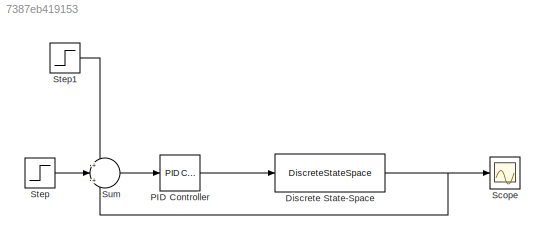
MODEL slx_7387eb419153
KIND model
CONFIG AbsTol = auto
CONFIG EnableMultiTasking = off
CONFIG FixedStep = auto
CONFIG MaxStep = auto
CONFIG MinStep = auto
CONFIG RelTol = 1e-3
CONFIG SampleTimeConstraint = Unconstrained
CONFIG SolverName = VariableStepAuto
CONFIG StartTime = 0.0
CONFIG StopTime = 10.0
BLOCK [DiscreteStateSpace] Discrete State-Space
  A = [0.966259805512643,0.020937278170769;0.211503070730898,0.098662247219045]
  B = [-0.004845864368065;0.021893138566807]
  C = [-56.541046013023710,4.833510649815440]
  D = 0
  SampleTime = 200e-6
BLOCK [Reference] PID Controller  REF=slpidlib/PID Controller
  LibrarySourceBlock = simulink/Continuous/PID Controller
  SourceBlock = slpidlib/PID Controller
  SourceType = PID 1dof
BLOCK [Scope] Scope
  Floating = off
  NumInputPorts = 1
  ScopeSpecificationString = Simulink.scopes.TimeScopeBlockCfg('CurrentConfiguration', extmgr.ConfigurationSet(extmgr.Configuration('Core','General UI',true),extmgr.Configuration('Core','Source UI',true),extmgr.Configuration('Sources','WiredSimulink',true),extmgr.Configuration('Visuals','Time Domain',true,'SerializedDisplays',{struct('MinYLimReal','-0.26181','MaxYLimReal','2.3563','YLabelReal','','MinYLimMag','0.00000','MaxYL...<+1471ch>
BLOCK [Step] Step
  Before = 1
  SampleTime = 0
BLOCK [Step] Step1
  SampleTime = 5
BLOCK [Sum] Sum
  Inputs = +|+|-
NET Discrete State-Space:1 -> Scope:1, Sum:3
LINE PID Controller:1 -> Discrete State-Space:1
LINE Step1:1 -> Sum:1
LINE Step:1 -> Sum:2
LINE Sum:1 -> PID Controller:1
note: NET lines group one-source signal fan-out (src -> all destinations, sorted); 1:1 wires keep LINE
